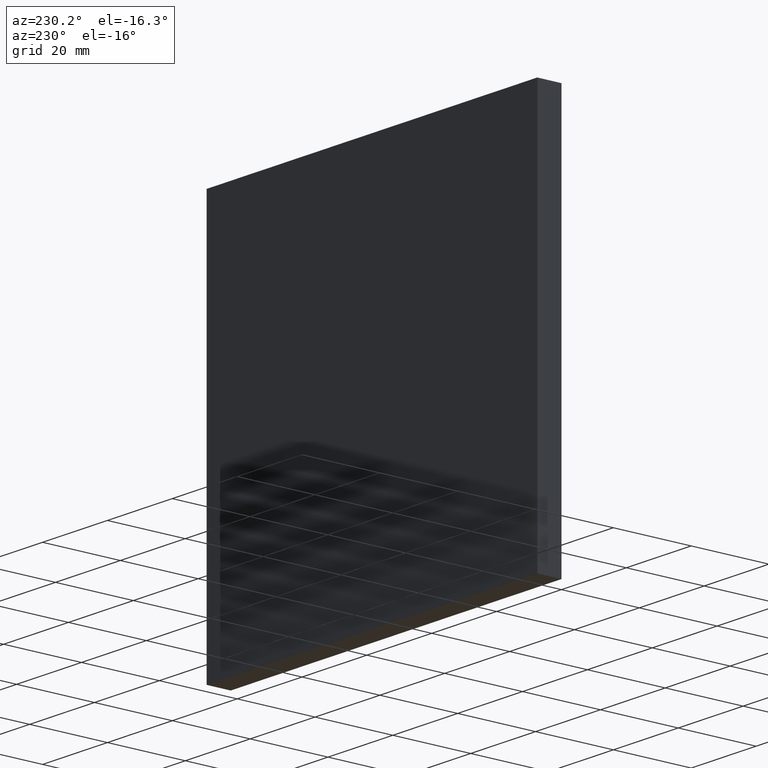
[diagram: clean part render]
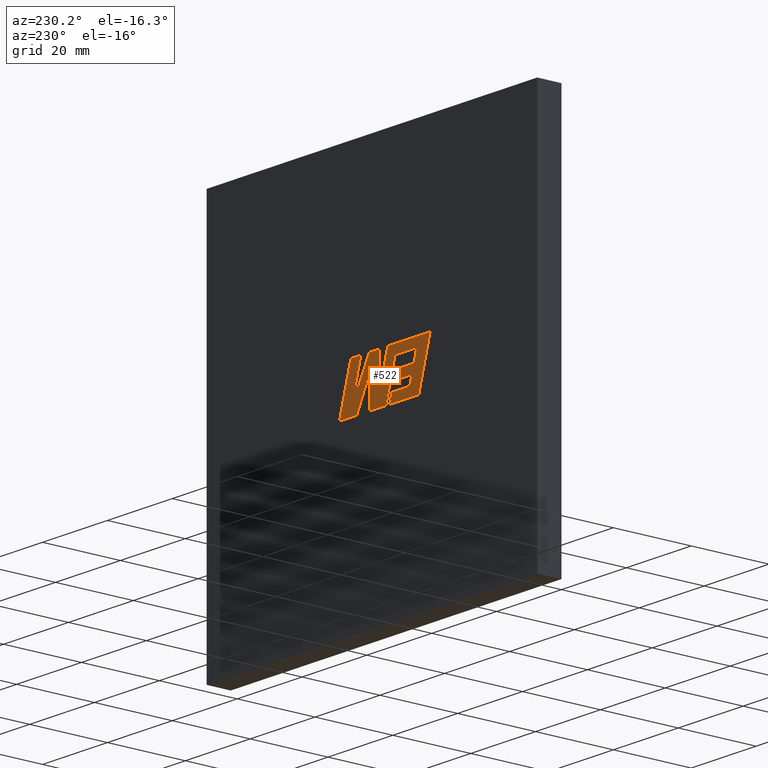
[diagram: same view with one face highlighted and labeled with its STEP entity id]
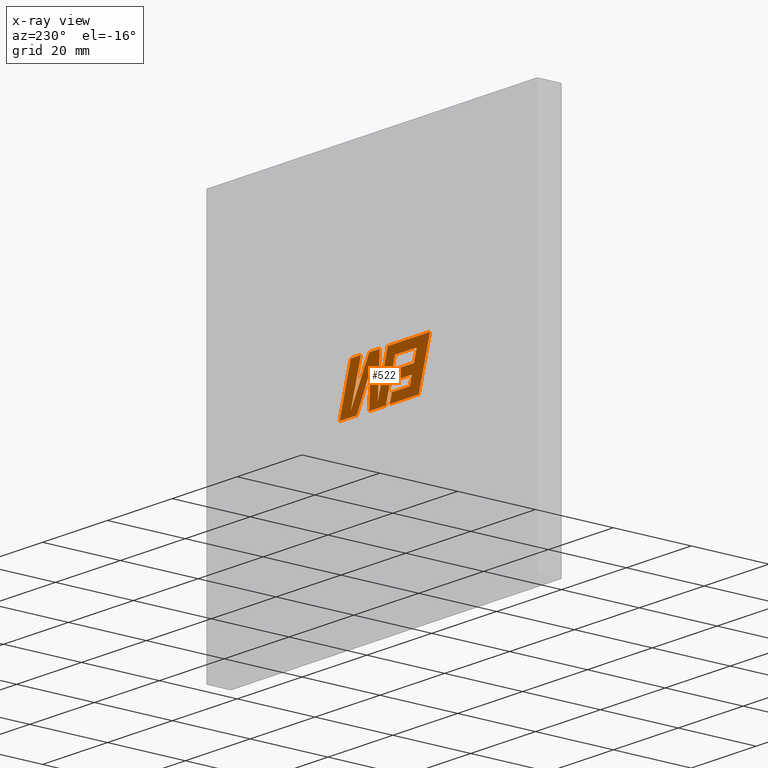
[diagram: x-ray of the same camera — body ghosted, the highlighted face saturated]
A machine part, auxiliary view. The second image highlights one B-rep face of the part: STEP entity #522.
The next image is the same camera in x-ray: the body ghosted, the highlighted face saturated — about 0% of this face is hidden behind the body in this view.
In plain terms, the highlighted planar face has unit normal (0, -1, -0).
Its self-contained STEP definition (entity closure, byte-faithful):
#4 = DIRECTION ( 'NONE',  ( 0.2746459304916872846, 0.000000000000000000, -0.9615454294334486729 ) ) ;
#14 = VERTEX_POINT ( 'NONE', #1543 ) ;
#17 = VERTEX_POINT ( 'NONE', #1219 ) ;
#36 = ORIENTED_EDGE ( 'NONE', *, *, #967, .T. ) ;
#40 = VECTOR ( 'NONE', #960, 1000.000000000000114 ) ;
#72 = ORIENTED_EDGE ( 'NONE', *, *, #1021, .T. ) ;
#75 = VECTOR ( 'NONE', #1990, 1000.000000000000000 ) ;
#79 = FACE_OUTER_BOUND ( 'NONE', #1234, .T. ) ;
#82 = VERTEX_POINT ( 'NONE', #2011 ) ;
#89 = LINE ( 'NONE', #989, #171 ) ;
#115 = CARTESIAN_POINT ( 'NONE',  ( 45.50101115738783619, 6.204999999999999183, -56.97690730506114676 ) ) ;
#135 = EDGE_CURVE ( 'NONE', #992, #17, #416, .T. ) ;
#142 = VERTEX_POINT ( 'NONE', #1823 ) ;
#161 = VERTEX_POINT ( 'NONE', #563 ) ;
#163 = EDGE_CURVE ( 'NONE', #142, #342, #1200, .T. ) ;
#171 = VECTOR ( 'NONE', #881, 1000.000000000000000 ) ;
#202 = ORIENTED_EDGE ( 'NONE', *, *, #481, .T. ) ;
#216 = VERTEX_POINT ( 'NONE', #623 ) ;
#222 = VECTOR ( 'NONE', #1715, 1000.000000000000114 ) ;
#243 = VECTOR ( 'NONE', #256, 1000.000000000000000 ) ;
#246 = VERTEX_POINT ( 'NONE', #115 ) ;
#256 = DIRECTION ( 'NONE',  ( 1.000000000000000000, 0.000000000000000000, 0.000000000000000000 ) ) ;
#273 = VECTOR ( 'NONE', #1370, 1000.000000000000000 ) ;
#283 = EDGE_CURVE ( 'NONE', #246, #2069, #931, .T. ) ;
#295 = ORIENTED_EDGE ( 'NONE', *, *, #1062, .T. ) ;
#299 = EDGE_CURVE ( 'NONE', #82, #1929, #1250, .T. ) ;
#310 = VECTOR ( 'NONE', #1777, 1000.000000000000000 ) ;
#329 = VERTEX_POINT ( 'NONE', #1416 ) ;
#342 = VERTEX_POINT ( 'NONE', #1950 ) ;
#378 = LINE ( 'NONE', #1451, #2060 ) ;
#381 = DIRECTION ( 'NONE',  ( -1.000000000000000000, 0.000000000000000000, 0.000000000000000000 ) ) ;
#391 = CARTESIAN_POINT ( 'NONE',  ( 38.68083630340058932, 6.204999999999999183, -52.42430026707791768 ) ) ;
#416 = LINE ( 'NONE', #1334, #1741 ) ;
#444 = VECTOR ( 'NONE', #604, 1000.000000000000000 ) ;
#467 = VECTOR ( 'NONE', #523, 1000.000000000000114 ) ;
#481 = EDGE_CURVE ( 'NONE', #1883, #329, #1036, .T. ) ;
#487 = CARTESIAN_POINT ( 'NONE',  ( 46.11530578496757471, 6.204999999999999183, -44.88000000000000256 ) ) ;
#494 = LINE ( 'NONE', #1466, #2054 ) ;
#518 = LINE ( 'NONE', #1906, #310 ) ;
#522 = ADVANCED_FACE ( 'NONE', ( #79 ), #1631, .F. ) ;
#523 = DIRECTION ( 'NONE',  ( -0.05596501978068033761, 0.000000000000000000, 0.9984327301130246912 ) ) ;
#539 = EDGE_CURVE ( 'NONE', #1467, #161, #89, .T. ) ;
#546 = VECTOR ( 'NONE', #1888, 1000.000000000000227 ) ;
#550 = DIRECTION ( 'NONE',  ( -0.2760118818968553822, 0.000000000000000000, 0.9611542233438691296 ) ) ;
#551 = CARTESIAN_POINT ( 'NONE',  ( 49.20756074917228062, 6.204999999999999183, -55.64955860883470962 ) ) ;
#562 = ORIENTED_EDGE ( 'NONE', *, *, #565, .T. ) ;
#563 = CARTESIAN_POINT ( 'NONE',  ( 55.68027868371447653, 6.204999999999999183, -56.97690730506114676 ) ) ;
#565 = EDGE_CURVE ( 'NONE', #1650, #216, #718, .T. ) ;
#573 = ORIENTED_EDGE ( 'NONE', *, *, #1084, .T. ) ;
#574 = LINE ( 'NONE', #1202, #1259 ) ;
#596 = EDGE_CURVE ( 'NONE', #1814, #1767, #1354, .T. ) ;
#603 = ORIENTED_EDGE ( 'NONE', *, *, #1561, .T. ) ;
#604 = DIRECTION ( 'NONE',  ( 1.000000000000000000, 0.000000000000000000, 0.000000000000000000 ) ) ;
#605 = LINE ( 'NONE', #1077, #222 ) ;
#623 = CARTESIAN_POINT ( 'NONE',  ( 54.43393876889507510, 6.204999999999999183, -44.88000000000000256 ) ) ;
#640 = CARTESIAN_POINT ( 'NONE',  ( 39.33555425705851860, 6.204999999999999183, -54.67432311315302229 ) ) ;
#650 = DIRECTION ( 'NONE',  ( 0.2732148821746199219, 0.000000000000000000, -0.9619530280415506951 ) ) ;
#653 = ORIENTED_EDGE ( 'NONE', *, *, #1862, .T. ) ;
#660 = EDGE_CURVE ( 'NONE', #1278, #1043, #1584, .T. ) ;
#679 = ORIENTED_EDGE ( 'NONE', *, *, #283, .T. ) ;
#694 = CARTESIAN_POINT ( 'NONE',  ( 49.20756074917228062, 6.204999999999999183, -55.64955860883470962 ) ) ;
#700 = LINE ( 'NONE', #1337, #75 ) ;
#706 = DIRECTION ( 'NONE',  ( 0.000000000000000000, 0.000000000000000000, -1.000000000000000000 ) ) ;
#714 = ORIENTED_EDGE ( 'NONE', *, *, #660, .T. ) ;
#717 = ORIENTED_EDGE ( 'NONE', *, *, #968, .T. ) ;
#718 = LINE ( 'NONE', #1152, #1073 ) ;
#722 = CARTESIAN_POINT ( 'NONE',  ( 38.04281733575064095, 6.204999999999999183, -50.18799707250079223 ) ) ;
#735 = DIRECTION ( 'NONE',  ( 0.2740217765954066076, 0.000000000000000000, -0.9617234872620595842 ) ) ;
#738 = VECTOR ( 'NONE', #1244, 1000.000000000000000 ) ;
#749 = CARTESIAN_POINT ( 'NONE',  ( 51.82882338773001152, 6.204999999999999183, -44.88000000000000256 ) ) ;
#850 = ORIENTED_EDGE ( 'NONE', *, *, #1408, .T. ) ;
#881 = DIRECTION ( 'NONE',  ( -1.000000000000000000, 0.000000000000000000, 0.000000000000000000 ) ) ;
#897 = VERTEX_POINT ( 'NONE', #1323 ) ;
#899 = DIRECTION ( 'NONE',  ( 0.2793947940878325209, 0.000000000000000000, -0.9601763114327583892 ) ) ;
#920 = ORIENTED_EDGE ( 'NONE', *, *, #1385, .T. ) ;
#928 = LINE ( 'NONE', #1070, #273 ) ;
#931 = LINE ( 'NONE', #2051, #738 ) ;
#938 = VECTOR ( 'NONE', #1184, 1000.000000000000114 ) ;
#949 = LINE ( 'NONE', #1598, #40 ) ;
#957 = EDGE_CURVE ( 'NONE', #216, #1310, #1930, .T. ) ;
#960 = DIRECTION ( 'NONE',  ( 0.05375259206908368503, 0.000000000000000000, -0.9985542843760947251 ) ) ;
#967 = EDGE_CURVE ( 'NONE', #329, #1523, #518, .T. ) ;
#968 = EDGE_CURVE ( 'NONE', #1043, #246, #494, .T. ) ;
#975 = CARTESIAN_POINT ( 'NONE',  ( 44.84702884187903749, 6.204999999999999183, -54.67432311315302229 ) ) ;
#984 = CARTESIAN_POINT ( 'NONE',  ( 51.85924969929270389, 6.204999999999999183, -56.97690730506114676 ) ) ;
#985 = LINE ( 'NONE', #487, #546 ) ;
#989 = CARTESIAN_POINT ( 'NONE',  ( 60.98589995330136304, 6.204999999999999183, -56.97690730506114676 ) ) ;
#992 = VERTEX_POINT ( 'NONE', #984 ) ;
#1011 = DIRECTION ( 'NONE',  ( 0.000000000000000000, -1.000000000000000000, -0.000000000000000000 ) ) ;
#1021 = EDGE_CURVE ( 'NONE', #342, #82, #1106, .T. ) ;
#1030 = CARTESIAN_POINT ( 'NONE',  ( 57.50794990697262676, 6.204999999999999183, -44.88000000000000256 ) ) ;
#1036 = LINE ( 'NONE', #694, #467 ) ;
#1043 = VERTEX_POINT ( 'NONE', #975 ) ;
#1060 = ORIENTED_EDGE ( 'NONE', *, *, #1481, .T. ) ;
#1062 = EDGE_CURVE ( 'NONE', #1310, #1467, #1541, .T. ) ;
#1070 = CARTESIAN_POINT ( 'NONE',  ( 43.89202339528995367, 6.204999999999999183, -47.18144395279858117 ) ) ;
#1073 = VECTOR ( 'NONE', #550, 1000.000000000000114 ) ;
#1077 = CARTESIAN_POINT ( 'NONE',  ( 51.82882338773001152, 6.204999999999999183, -44.88000000000000256 ) ) ;
#1084 = EDGE_CURVE ( 'NONE', #17, #1998, #1324, .T. ) ;
#1106 = LINE ( 'NONE', #1740, #1205 ) ;
#1133 = VECTOR ( 'NONE', #2005, 1000.000000000000227 ) ;
#1136 = DIRECTION ( 'NONE',  ( 1.000000000000000000, 0.000000000000000000, 0.000000000000000000 ) ) ;
#1152 = CARTESIAN_POINT ( 'NONE',  ( 57.54149500661883110, 6.204999999999999183, -55.70142109839654410 ) ) ;
#1179 = ORIENTED_EDGE ( 'NONE', *, *, #135, .T. ) ;
#1184 = DIRECTION ( 'NONE',  ( 0.2763139702539101350, 0.000000000000000000, -0.9610674221107076143 ) ) ;
#1188 = CARTESIAN_POINT ( 'NONE',  ( 33.08321848151378219, 6.204999999999999183, -44.88000000000000256 ) ) ;
#1200 = LINE ( 'NONE', #722, #1602 ) ;
#1202 = CARTESIAN_POINT ( 'NONE',  ( 37.18616670986781259, 6.204999999999999183, -47.18144395279858117 ) ) ;
#1205 = VECTOR ( 'NONE', #4, 1000.000000000000000 ) ;
#1219 = CARTESIAN_POINT ( 'NONE',  ( 46.70760485128187867, 6.204999999999999183, -56.97690730506114676 ) ) ;
#1221 = EDGE_CURVE ( 'NONE', #1767, #1883, #985, .T. ) ;
#1230 = CARTESIAN_POINT ( 'NONE',  ( 46.11530578496757471, 6.204999999999999183, -44.88000000000000256 ) ) ;
#1234 = EDGE_LOOP ( 'NONE', ( #1673, #1655, #603, #1179, #573, #1350, #1060, #1485, #72, #1839, #850, #714, #717, #679, #920, #1753, #1299, #202, #36, #653, #562, #1993, #295 ) ) ;
#1237 = AXIS2_PLACEMENT_3D ( 'NONE', #1807, #1011, #706 ) ;
#1244 = DIRECTION ( 'NONE',  ( -1.000000000000000000, 0.000000000000000000, 0.000000000000000000 ) ) ;
#1245 = LINE ( 'NONE', #1721, #1703 ) ;
#1250 = LINE ( 'NONE', #1884, #1369 ) ;
#1259 = VECTOR ( 'NONE', #735, 1000.000000000000114 ) ;
#1278 = VERTEX_POINT ( 'NONE', #1801 ) ;
#1299 = ORIENTED_EDGE ( 'NONE', *, *, #1221, .T. ) ;
#1310 = VERTEX_POINT ( 'NONE', #1030 ) ;
#1323 = CARTESIAN_POINT ( 'NONE',  ( 51.39403723545738245, 6.204999999999999183, -48.33472130013532109 ) ) ;
#1324 = LINE ( 'NONE', #1351, #1133 ) ;
#1334 = CARTESIAN_POINT ( 'NONE',  ( 51.85924969929270389, 6.204999999999999183, -56.97690730506114676 ) ) ;
#1337 = CARTESIAN_POINT ( 'NONE',  ( 36.56422143588009277, 6.204999999999999183, -56.97690730506114676 ) ) ;
#1350 = ORIENTED_EDGE ( 'NONE', *, *, #1444, .T. ) ;
#1351 = CARTESIAN_POINT ( 'NONE',  ( 46.70760485128187867, 6.204999999999999183, -56.97690730506114676 ) ) ;
#1354 = LINE ( 'NONE', #1529, #444 ) ;
#1358 = CARTESIAN_POINT ( 'NONE',  ( 60.98589995330136304, 6.204999999999999183, -56.97690730506114676 ) ) ;
#1369 = VECTOR ( 'NONE', #1692, 1000.000000000000000 ) ;
#1370 = DIRECTION ( 'NONE',  ( -1.000000000000000000, 0.000000000000000000, 0.000000000000000000 ) ) ;
#1385 = EDGE_CURVE ( 'NONE', #2069, #1814, #700, .T. ) ;
#1408 = EDGE_CURVE ( 'NONE', #1929, #1278, #1245, .T. ) ;
#1416 = CARTESIAN_POINT ( 'NONE',  ( 48.60389608314675058, 6.204999999999999183, -44.88000000000000256 ) ) ;
#1427 = VECTOR ( 'NONE', #1136, 1000.000000000000000 ) ;
#1440 = DIRECTION ( 'NONE',  ( -0.4443210308329110791, 0.000000000000000000, 0.8958676361827003776 ) ) ;
#1444 = EDGE_CURVE ( 'NONE', #1998, #14, #928, .T. ) ;
#1445 = CARTESIAN_POINT ( 'NONE',  ( 54.43393876889507510, 6.204999999999999183, -44.88000000000000256 ) ) ;
#1451 = CARTESIAN_POINT ( 'NONE',  ( 55.68027868371447653, 6.204999999999999183, -56.97690730506114676 ) ) ;
#1466 = CARTESIAN_POINT ( 'NONE',  ( 44.84702884187903749, 6.204999999999999183, -54.67432311315302229 ) ) ;
#1467 = VERTEX_POINT ( 'NONE', #1358 ) ;
#1481 = EDGE_CURVE ( 'NONE', #14, #142, #574, .T. ) ;
#1485 = ORIENTED_EDGE ( 'NONE', *, *, #163, .T. ) ;
#1523 = VERTEX_POINT ( 'NONE', #749 ) ;
#1529 = CARTESIAN_POINT ( 'NONE',  ( 33.08321848151378219, 6.204999999999999183, -44.88000000000000256 ) ) ;
#1541 = LINE ( 'NONE', #1676, #938 ) ;
#1543 = CARTESIAN_POINT ( 'NONE',  ( 37.18616670986781259, 6.204999999999999183, -47.18144395279858117 ) ) ;
#1561 = EDGE_CURVE ( 'NONE', #897, #992, #949, .T. ) ;
#1584 = LINE ( 'NONE', #640, #243 ) ;
#1598 = CARTESIAN_POINT ( 'NONE',  ( 51.39403723545738245, 6.204999999999999183, -48.33472130013532109 ) ) ;
#1602 = VECTOR ( 'NONE', #1965, 1000.000000000000000 ) ;
#1606 = CARTESIAN_POINT ( 'NONE',  ( 36.56422143588009277, 6.204999999999999183, -56.97690730506114676 ) ) ;
#1631 = PLANE ( 'NONE',  #1237 ) ;
#1650 = VERTEX_POINT ( 'NONE', #1821 ) ;
#1655 = ORIENTED_EDGE ( 'NONE', *, *, #1914, .T. ) ;
#1673 = ORIENTED_EDGE ( 'NONE', *, *, #539, .T. ) ;
#1676 = CARTESIAN_POINT ( 'NONE',  ( 57.50794990697262676, 6.204999999999999183, -44.88000000000000256 ) ) ;
#1692 = DIRECTION ( 'NONE',  ( -1.000000000000000000, 0.000000000000000000, 0.000000000000000000 ) ) ;
#1703 = VECTOR ( 'NONE', #899, 1000.000000000000114 ) ;
#1715 = DIRECTION ( 'NONE',  ( 0.4668459304955199785, 0.000000000000000000, -0.8843386665637618105 ) ) ;
#1721 = CARTESIAN_POINT ( 'NONE',  ( 38.68083630340058932, 6.204999999999999183, -52.42430026707791768 ) ) ;
#1726 = CARTESIAN_POINT ( 'NONE',  ( 43.89202339528995367, 6.204999999999999183, -47.18144395279858117 ) ) ;
#1740 = CARTESIAN_POINT ( 'NONE',  ( 43.23421576143650213, 6.204999999999999183, -50.18799707250079223 ) ) ;
#1741 = VECTOR ( 'NONE', #381, 1000.000000000000000 ) ;
#1753 = ORIENTED_EDGE ( 'NONE', *, *, #596, .T. ) ;
#1767 = VERTEX_POINT ( 'NONE', #1230 ) ;
#1777 = DIRECTION ( 'NONE',  ( 1.000000000000000000, 0.000000000000000000, 0.000000000000000000 ) ) ;
#1801 = CARTESIAN_POINT ( 'NONE',  ( 39.33555425705851860, 6.204999999999999183, -54.67432311315302229 ) ) ;
#1807 = CARTESIAN_POINT ( 'NONE',  ( -0.02553512749511530067, 6.204999999999999183, 0.08865145588189682346 ) ) ;
#1814 = VERTEX_POINT ( 'NONE', #1188 ) ;
#1821 = CARTESIAN_POINT ( 'NONE',  ( 57.54149500661883110, 6.204999999999999183, -55.70142109839654410 ) ) ;
#1823 = CARTESIAN_POINT ( 'NONE',  ( 38.04281733575064095, 6.204999999999999183, -50.18799707250079223 ) ) ;
#1839 = ORIENTED_EDGE ( 'NONE', *, *, #299, .T. ) ;
#1862 = EDGE_CURVE ( 'NONE', #1523, #1650, #605, .T. ) ;
#1883 = VERTEX_POINT ( 'NONE', #551 ) ;
#1884 = CARTESIAN_POINT ( 'NONE',  ( 43.87297036723609978, 6.204999999999999183, -52.42430026707791768 ) ) ;
#1888 = DIRECTION ( 'NONE',  ( 0.2759782365590796593, 0.000000000000000000, -0.9611638845408937426 ) ) ;
#1906 = CARTESIAN_POINT ( 'NONE',  ( 48.60389608314675058, 6.204999999999999183, -44.88000000000000256 ) ) ;
#1914 = EDGE_CURVE ( 'NONE', #161, #897, #378, .T. ) ;
#1929 = VERTEX_POINT ( 'NONE', #391 ) ;
#1930 = LINE ( 'NONE', #1445, #1427 ) ;
#1950 = CARTESIAN_POINT ( 'NONE',  ( 43.23421576143650213, 6.204999999999999183, -50.18799707250079223 ) ) ;
#1965 = DIRECTION ( 'NONE',  ( 1.000000000000000000, 0.000000000000000000, 0.000000000000000000 ) ) ;
#1990 = DIRECTION ( 'NONE',  ( -0.2765379750249959967, 0.000000000000000000, 0.9610029908221278117 ) ) ;
#1993 = ORIENTED_EDGE ( 'NONE', *, *, #957, .T. ) ;
#1998 = VERTEX_POINT ( 'NONE', #1726 ) ;
#2005 = DIRECTION ( 'NONE',  ( -0.2762517575166416051, 0.000000000000000000, 0.9610853065513833560 ) ) ;
#2011 = CARTESIAN_POINT ( 'NONE',  ( 43.87297036723609978, 6.204999999999999183, -52.42430026707791768 ) ) ;
#2051 = CARTESIAN_POINT ( 'NONE',  ( 45.50101115738783619, 6.204999999999999183, -56.97690730506114676 ) ) ;
#2054 = VECTOR ( 'NONE', #650, 1000.000000000000227 ) ;
#2060 = VECTOR ( 'NONE', #1440, 1000.000000000000114 ) ;
#2069 = VERTEX_POINT ( 'NONE', #1606 ) ;